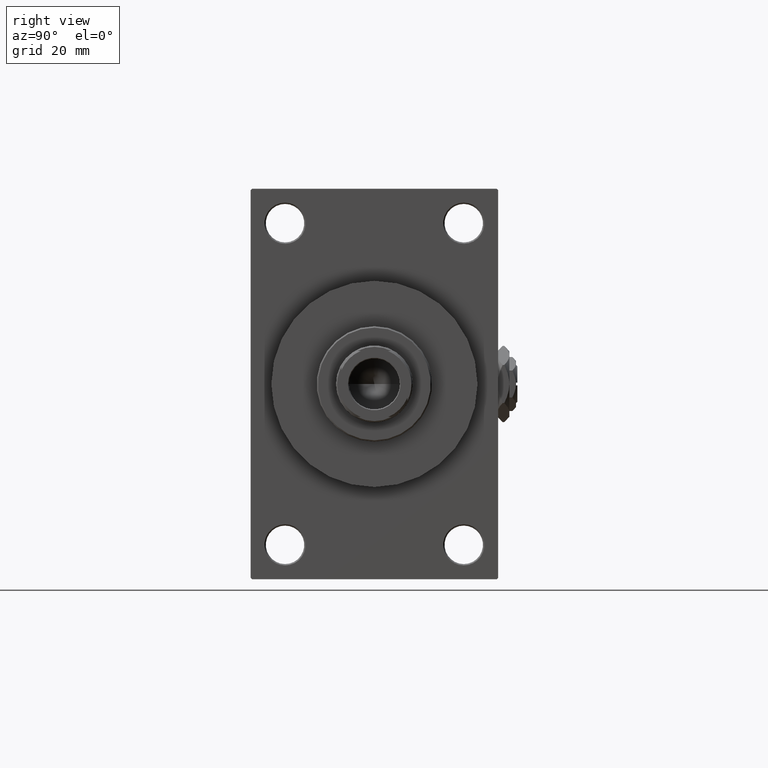
[diagram: clean part render]
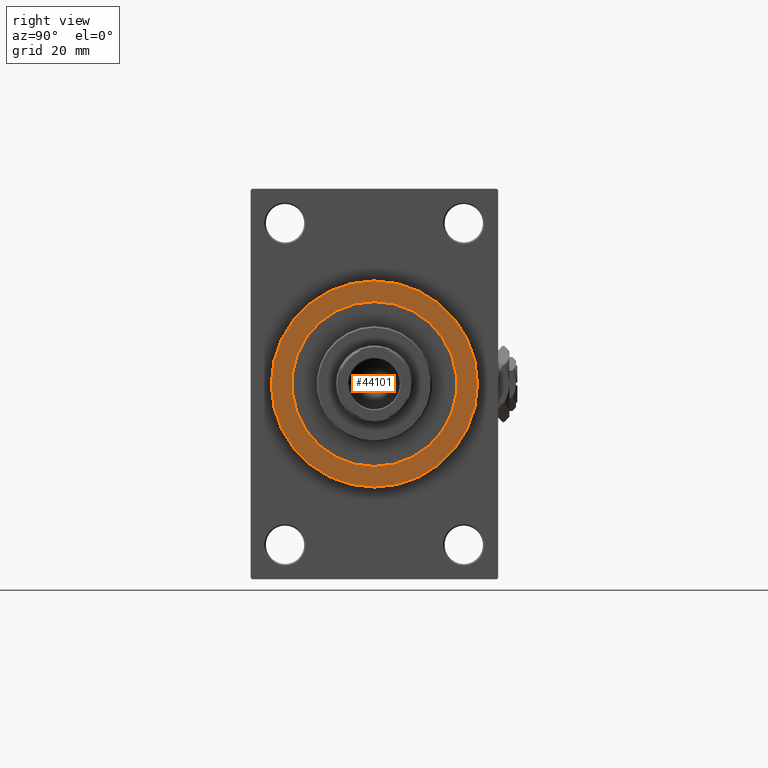
[diagram: same view with one face highlighted and labeled with its STEP entity id]
A machine part, right view. The second image highlights one B-rep face of the part: STEP entity #44101.
In plain terms, the highlighted planar face has unit normal (1, 0, 0).
Its self-contained STEP definition (entity closure, byte-faithful):
#318 = DIRECTION ( 'NONE',  ( 0.000000000000000000, 0.000000000000000000, -1.000000000000000000 ) ) ;
#1344 = VERTEX_POINT ( 'NONE', #6193 ) ;
#3150 = ORIENTED_EDGE ( 'NONE', *, *, #21970, .T. ) ;
#3242 = VERTEX_POINT ( 'NONE', #39602 ) ;
#3290 = CARTESIAN_POINT ( 'NONE',  ( 156.0000000000000284, 0.000000000000000000, 0.000000000000000000 ) ) ;
#3493 = CARTESIAN_POINT ( 'NONE',  ( 156.0000000000000284, 0.000000000000000000, 0.000000000000000000 ) ) ;
#6193 = CARTESIAN_POINT ( 'NONE',  ( 156.0000000000000284, 3.673940397442059178E-15, 30.00000000000000000 ) ) ;
#6452 = AXIS2_PLACEMENT_3D ( 'NONE', #25661, #22679, #33085 ) ;
#6980 = EDGE_CURVE ( 'NONE', #22123, #1344, #25420, .T. ) ;
#10023 = ORIENTED_EDGE ( 'NONE', *, *, #6980, .F. ) ;
#10925 = FACE_BOUND ( 'NONE', #30327, .T. ) ;
#12011 = AXIS2_PLACEMENT_3D ( 'NONE', #3493, #21581, #29256 ) ;
#12117 = AXIS2_PLACEMENT_3D ( 'NONE', #47753, #40833, #28967 ) ;
#14312 = CIRCLE ( 'NONE', #15906, 37.50000000000000711 ) ;
#15906 = AXIS2_PLACEMENT_3D ( 'NONE', #38404, #26275, #45572 ) ;
#17814 = EDGE_LOOP ( 'NONE', ( #3150, #43864 ) ) ;
#21581 = DIRECTION ( 'NONE',  ( 1.000000000000000000, 0.000000000000000000, 0.000000000000000000 ) ) ;
#21970 = EDGE_CURVE ( 'NONE', #24982, #3242, #14312, .T. ) ;
#22123 = VERTEX_POINT ( 'NONE', #42573 ) ;
#22679 = DIRECTION ( 'NONE',  ( 1.000000000000000000, 0.000000000000000000, 0.000000000000000000 ) ) ;
#24982 = VERTEX_POINT ( 'NONE', #25407 ) ;
#25407 = CARTESIAN_POINT ( 'NONE',  ( 156.0000000000000284, 0.000000000000000000, 37.50000000000000711 ) ) ;
#25420 = CIRCLE ( 'NONE', #6452, 30.00000000000000000 ) ;
#25661 = CARTESIAN_POINT ( 'NONE',  ( 156.0000000000000284, 0.000000000000000000, 0.000000000000000000 ) ) ;
#26275 = DIRECTION ( 'NONE',  ( 1.000000000000000000, 0.000000000000000000, 0.000000000000000000 ) ) ;
#28967 = DIRECTION ( 'NONE',  ( 0.000000000000000000, 0.000000000000000000, -1.000000000000000000 ) ) ;
#29256 = DIRECTION ( 'NONE',  ( 0.000000000000000000, 0.000000000000000000, -1.000000000000000000 ) ) ;
#30327 = EDGE_LOOP ( 'NONE', ( #10023, #43019 ) ) ;
#30502 = CIRCLE ( 'NONE', #45516, 30.00000000000000000 ) ;
#33085 = DIRECTION ( 'NONE',  ( 0.000000000000000000, 0.000000000000000000, -1.000000000000000000 ) ) ;
#33732 = DIRECTION ( 'NONE',  ( 1.000000000000000000, 0.000000000000000000, 0.000000000000000000 ) ) ;
#36683 = PLANE ( 'NONE',  #12011 ) ;
#36877 = EDGE_CURVE ( 'NONE', #1344, #22123, #30502, .T. ) ;
#37422 = CIRCLE ( 'NONE', #12117, 37.50000000000000711 ) ;
#38404 = CARTESIAN_POINT ( 'NONE',  ( 156.0000000000000284, 0.000000000000000000, 0.000000000000000000 ) ) ;
#39602 = CARTESIAN_POINT ( 'NONE',  ( 156.0000000000000284, 4.592425496802575156E-15, -37.50000000000000711 ) ) ;
#40833 = DIRECTION ( 'NONE',  ( 1.000000000000000000, 0.000000000000000000, 0.000000000000000000 ) ) ;
#41114 = FACE_OUTER_BOUND ( 'NONE', #17814, .T. ) ;
#42573 = CARTESIAN_POINT ( 'NONE',  ( 156.0000000000000284, 0.000000000000000000, -30.00000000000000000 ) ) ;
#43019 = ORIENTED_EDGE ( 'NONE', *, *, #36877, .F. ) ;
#43864 = ORIENTED_EDGE ( 'NONE', *, *, #47089, .T. ) ;
#44101 = ADVANCED_FACE ( 'NONE', ( #10925, #41114 ), #36683, .T. ) ;
#45516 = AXIS2_PLACEMENT_3D ( 'NONE', #3290, #33732, #318 ) ;
#45572 = DIRECTION ( 'NONE',  ( 0.000000000000000000, 0.000000000000000000, -1.000000000000000000 ) ) ;
#47089 = EDGE_CURVE ( 'NONE', #3242, #24982, #37422, .T. ) ;
#47753 = CARTESIAN_POINT ( 'NONE',  ( 156.0000000000000284, 0.000000000000000000, 0.000000000000000000 ) ) ;